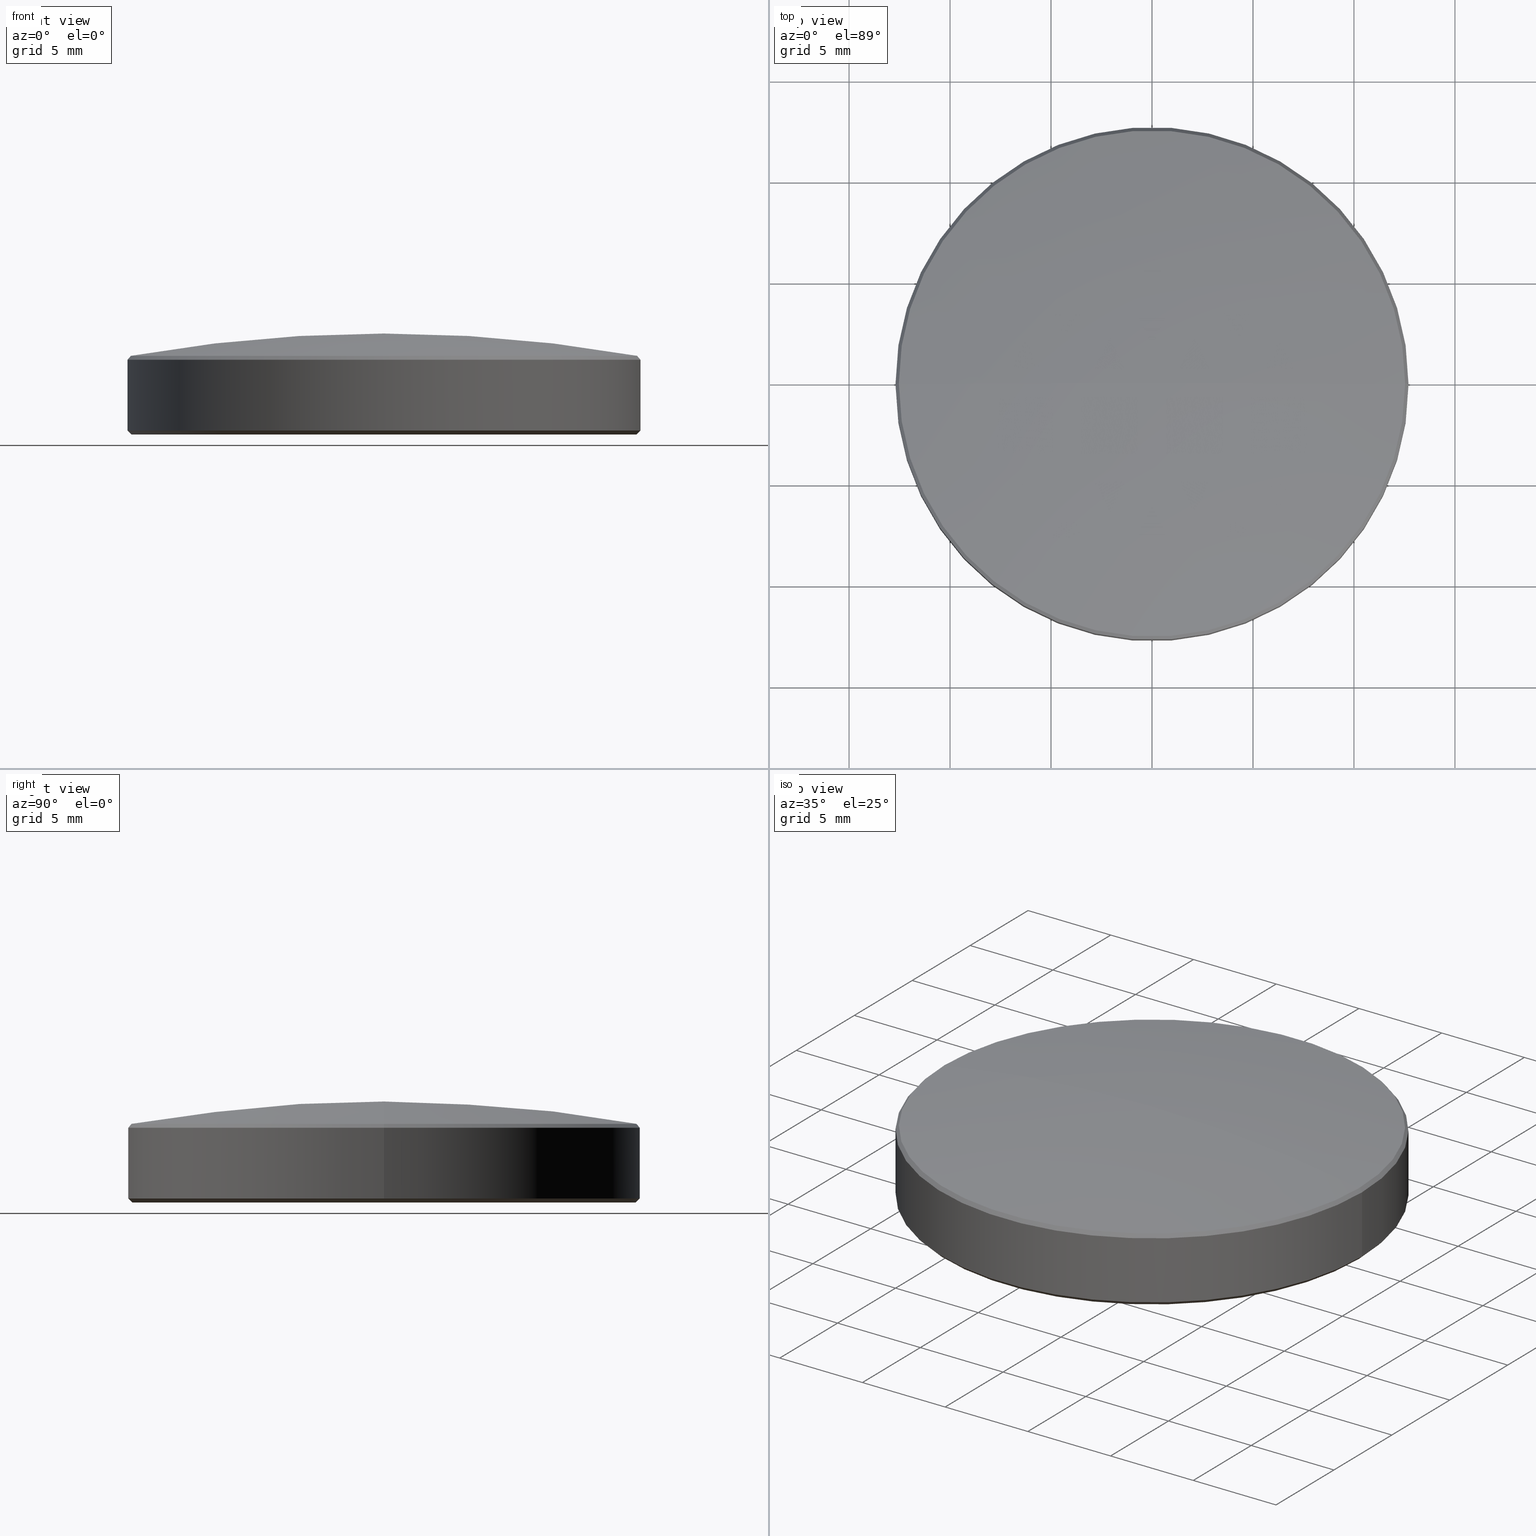
[diagram: canonical four-view strip — front | top / right | iso, engineering-drawing reading convention]
A machine part, canonical four-view strip (front | top / right | iso — engineering-drawing reading convention). The complete STEP part file that produces these views, byte-faithful:
ISO-10303-21;
HEADER;
FILE_DESCRIPTION (( 'STEP AP214' ),
    '1' );
FILE_NAME ('GL7AL1-025-050.STEP',
    '2024-07-21T09:20:45',
    ( '' ),
    ( '' ),
    'SwSTEP 2.0',
    'SolidWorks 2022',
    '' );
FILE_SCHEMA (( 'AUTOMOTIVE_DESIGN' ));
ENDSEC;

DATA;
#1 = ORIENTED_EDGE ( 'NONE', *, *, #106, .T. ) ;
#2 =( NAMED_UNIT ( * ) SI_UNIT ( $, .STERADIAN. ) SOLID_ANGLE_UNIT ( ) );
#3 = FILL_AREA_STYLE ('',( #185 ) ) ;
#4 = COLOUR_RGB ( '',1.000000000000000000, 1.000000000000000000, 1.000000000000000000 ) ;
#5 = CIRCLE ( 'NONE', #192, 12.53498460677301907 ) ;
#6 = ADVANCED_FACE ( 'NONE', ( #213 ), #10, .T. ) ;
#7 = AXIS2_PLACEMENT_3D ( 'NONE', #35, #199, #96 ) ;
#8 = DIRECTION ( 'NONE',  ( 1.000000000000000000, 0.000000000000000000, 0.000000000000000000 ) ) ;
#9 = CIRCLE ( 'NONE', #76, 12.50000000000000178 ) ;
#10 = CYLINDRICAL_SURFACE ( 'NONE', #163, 12.69999999999999929 ) ;
#11 = CARTESIAN_POINT ( 'NONE',  ( -12.69999999999999929, 1.555301434917138433E-15, 0.1999999999999987899 ) ) ;
#12 = ORIENTED_EDGE ( 'NONE', *, *, #33, .F. ) ;
#13 = EDGE_LOOP ( 'NONE', ( #101, #48, #232 ) ) ;
#14 = EDGE_CURVE ( 'NONE', #217, #95, #168, .T. ) ;
#15 = DIRECTION ( 'NONE',  ( -1.000000000000000000, 0.000000000000000000, 0.000000000000000000 ) ) ;
#16 = AXIS2_PLACEMENT_3D ( 'NONE', #32, #115, #18 ) ;
#17 = LINE ( 'NONE', #98, #226 ) ;
#18 = DIRECTION ( 'NONE',  ( -1.000000000000000000, 0.000000000000000000, 1.936615658360934486E-16 ) ) ;
#19 = SPHERICAL_SURFACE ( 'NONE', #250, 71.65999999999999659 ) ;
#20 = DIRECTION ( 'NONE',  ( -0.000000000000000000, -0.000000000000000000, 1.000000000000000000 ) ) ;
#21 = ORIENTED_EDGE ( 'NONE', *, *, #99, .T. ) ;
#22 =( NAMED_UNIT ( * ) SI_UNIT ( $, .STERADIAN. ) SOLID_ANGLE_UNIT ( ) );
#23 = SURFACE_STYLE_USAGE ( .BOTH. , #43 ) ;
#24 = AXIS2_PLACEMENT_3D ( 'NONE', #77, #20, #116 ) ;
#25 = CARTESIAN_POINT ( 'NONE',  ( 0.000000000000000000, 0.000000000000000000, 3.879999999999999893 ) ) ;
#26 = EDGE_LOOP ( 'NONE', ( #66, #128, #233, #111 ) ) ;
#27 = LINE ( 'NONE', #110, #42 ) ;
#28 = EDGE_LOOP ( 'NONE', ( #148, #178, #47, #214 ) ) ;
#29 = DIRECTION ( 'NONE',  ( -1.000000000000000000, -1.224646799147353454E-16, 0.000000000000000000 ) ) ;
#30 = VERTEX_POINT ( 'NONE', #258 ) ;
#31 = CARTESIAN_POINT ( 'NONE',  ( 0.000000000000000000, 0.000000000000000000, 3.879999999999999893 ) ) ;
#32 = CARTESIAN_POINT ( 'NONE',  ( 0.000000000000000000, 0.000000000000000000, -66.65999999999999659 ) ) ;
#33 = EDGE_CURVE ( 'NONE', #95, #52, #166, .T. ) ;
#34 = DIRECTION ( 'NONE',  ( 0.000000000000000000, 0.000000000000000000, -1.000000000000000000 ) ) ;
#35 = CARTESIAN_POINT ( 'NONE',  ( 0.000000000000000000, 0.000000000000000000, 0.1999999999999987899 ) ) ;
#36 = CARTESIAN_POINT ( 'NONE',  ( 0.000000000000000000, 0.000000000000000000, 0.000000000000000000 ) ) ;
#37 =( GEOMETRIC_REPRESENTATION_CONTEXT ( 3 ) GLOBAL_UNCERTAINTY_ASSIGNED_CONTEXT ( ( #39 ) ) GLOBAL_UNIT_ASSIGNED_CONTEXT ( ( #83, #64, #22 ) ) REPRESENTATION_CONTEXT ( 'NONE', 'WORKASPACE' ) );
#38 = CIRCLE ( 'NONE', #24, 12.69999999999999929 ) ;
#39 = UNCERTAINTY_MEASURE_WITH_UNIT (LENGTH_MEASURE( 1.000000000000000082E-05 ), #83, 'distance_accuracy_value', 'NONE');
#40 =( LENGTH_UNIT ( ) NAMED_UNIT ( * ) SI_UNIT ( .MILLI., .METRE. ) );
#41 = VECTOR ( 'NONE', #150, 1000.000000000000000 ) ;
#42 = VECTOR ( 'NONE', #237, 1000.000000000000000 ) ;
#43 = SURFACE_SIDE_STYLE ('',( #67 ) ) ;
#44 =( GEOMETRIC_REPRESENTATION_CONTEXT ( 3 ) GLOBAL_UNCERTAINTY_ASSIGNED_CONTEXT ( ( #170 ) ) GLOBAL_UNIT_ASSIGNED_CONTEXT ( ( #40, #103, #125 ) ) REPRESENTATION_CONTEXT ( 'NONE', 'WORKASPACE' ) );
#45 = AXIS2_PLACEMENT_3D ( 'NONE', #179, #159, #74 ) ;
#46 =( LENGTH_UNIT ( ) NAMED_UNIT ( * ) SI_UNIT ( .MILLI., .METRE. ) );
#47 = ORIENTED_EDGE ( 'NONE', *, *, #54, .T. ) ;
#48 = ORIENTED_EDGE ( 'NONE', *, *, #65, .T. ) ;
#49 = DIRECTION ( 'NONE',  ( 0.000000000000000000, 0.000000000000000000, 1.000000000000000000 ) ) ;
#50 = CARTESIAN_POINT ( 'NONE',  ( 0.000000000000000000, 0.000000000000000000, 3.895154035038178364 ) ) ;
#51 = CARTESIAN_POINT ( 'NONE',  ( 0.000000000000000000, 0.000000000000000000, 3.895154035038178364 ) ) ;
#52 = VERTEX_POINT ( 'NONE', #93 ) ;
#53 = AXIS2_PLACEMENT_3D ( 'NONE', #31, #63, #57 ) ;
#54 = EDGE_CURVE ( 'NONE', #191, #238, #132, .T. ) ;
#55 = CARTESIAN_POINT ( 'NONE',  ( -12.50000000000000178, 1.543054966925665273E-15, 0.000000000000000000 ) ) ;
#56 = ORIENTED_EDGE ( 'NONE', *, *, #249, .F. ) ;
#57 = DIRECTION ( 'NONE',  ( -1.000000000000000000, 0.000000000000000000, 0.000000000000000000 ) ) ;
#58 = CARTESIAN_POINT ( 'NONE',  ( 4.387909481344959759E-15, 0.000000000000000000, 5.000000000000004441 ) ) ;
#59 = AXIS2_PLACEMENT_3D ( 'NONE', #68, #244, #211 ) ;
#60 = DIRECTION ( 'NONE',  ( -1.000000000000000000, 0.000000000000000000, 1.936615658360934486E-16 ) ) ;
#61 = AXIS2_PLACEMENT_3D ( 'NONE', #114, #201, #240 ) ;
#62 = DIRECTION ( 'NONE',  ( 0.000000000000000000, 0.000000000000000000, -1.000000000000000000 ) ) ;
#63 = DIRECTION ( 'NONE',  ( -0.000000000000000000, -0.000000000000000000, -1.000000000000000000 ) ) ;
#64 =( NAMED_UNIT ( * ) PLANE_ANGLE_UNIT ( ) SI_UNIT ( $, .RADIAN. ) );
#65 = EDGE_CURVE ( 'NONE', #217, #52, #130, .T. ) ;
#66 = ORIENTED_EDGE ( 'NONE', *, *, #82, .F. ) ;
#67 = SURFACE_STYLE_FILL_AREA ( #3 ) ;
#68 = CARTESIAN_POINT ( 'NONE',  ( 0.000000000000000000, 0.000000000000000000, 0.000000000000000000 ) ) ;
#69 = ORIENTED_EDGE ( 'NONE', *, *, #157, .F. ) ;
#70 = APPLICATION_CONTEXT ( 'automotive_design' ) ;
#71 = EDGE_CURVE ( 'NONE', #52, #95, #5, .T. ) ;
#72 = VERTEX_POINT ( 'NONE', #55 ) ;
#73 = ORIENTED_EDGE ( 'NONE', *, *, #65, .F. ) ;
#74 = DIRECTION ( 'NONE',  ( 1.000000000000000000, 0.000000000000000000, 0.000000000000000000 ) ) ;
#75 = DIRECTION ( 'NONE',  ( -1.000000000000000000, 0.000000000000000000, 0.000000000000000000 ) ) ;
#76 = AXIS2_PLACEMENT_3D ( 'NONE', #212, #107, #8 ) ;
#77 = CARTESIAN_POINT ( 'NONE',  ( 0.000000000000000000, 0.000000000000000000, 0.1999999999999987899 ) ) ;
#78 = CIRCLE ( 'NONE', #105, 12.69999999999999929 ) ;
#79 = CARTESIAN_POINT ( 'NONE',  ( 0.000000000000000000, 0.000000000000000000, 3.895154035038178364 ) ) ;
#80 = FACE_OUTER_BOUND ( 'NONE', #13, .T. ) ;
#81 = ORIENTED_EDGE ( 'NONE', *, *, #152, .F. ) ;
#82 = EDGE_CURVE ( 'NONE', #72, #238, #134, .T. ) ;
#83 =( LENGTH_UNIT ( ) NAMED_UNIT ( * ) SI_UNIT ( .MILLI., .METRE. ) );
#84 = EDGE_CURVE ( 'NONE', #172, #72, #9, .T. ) ;
#85 = STYLED_ITEM ( 'NONE', ( #187 ), #261 ) ;
#86 = PRODUCT_RELATED_PRODUCT_CATEGORY ( 'part', '', ( #228 ) ) ;
#87 = CARTESIAN_POINT ( 'NONE',  ( -12.53498460677301729, 0.000000000000000000, 3.895154035038178364 ) ) ;
#88 = APPLICATION_PROTOCOL_DEFINITION ( 'draft international standard', 'automotive_design', 1998, #70 ) ;
#89 = DIRECTION ( 'NONE',  ( -0.000000000000000000, -0.000000000000000000, -1.000000000000000000 ) ) ;
#90 = CARTESIAN_POINT ( 'NONE',  ( -12.69999999999999929, 0.000000000000000000, 3.879999999999999893 ) ) ;
#91 = ORIENTED_EDGE ( 'NONE', *, *, #84, .T. ) ;
#92 = DIRECTION ( 'NONE',  ( -1.224646799147353207E-16, 1.000000000000000000, 1.499759782661856513E-32 ) ) ;
#93 = CARTESIAN_POINT ( 'NONE',  ( 12.53498460677301729, 1.535092877604591061E-15, 3.895154035038178364 ) ) ;
#94 = DIRECTION ( 'NONE',  ( 0.6422915872619319178, 7.865803364595977467E-17, -0.7664603818414543746 ) ) ;
#95 = VERTEX_POINT ( 'NONE', #87 ) ;
#96 = DIRECTION ( 'NONE',  ( 1.000000000000000000, 0.000000000000000000, 0.000000000000000000 ) ) ;
#97 = FACE_OUTER_BOUND ( 'NONE', #28, .T. ) ;
#98 = CARTESIAN_POINT ( 'NONE',  ( 12.69999999999999929, 0.000000000000000000, 0.1999999999999987899 ) ) ;
#99 = EDGE_CURVE ( 'NONE', #255, #30, #27, .T. ) ;
#100 = CARTESIAN_POINT ( 'NONE',  ( -12.69999999999999929, 0.000000000000000000, 0.1999999999999987899 ) ) ;
#101 = ORIENTED_EDGE ( 'NONE', *, *, #14, .F. ) ;
#102 = ADVANCED_BREP_SHAPE_REPRESENTATION ( 'GL7AL1-025-050', ( #261, #189 ), #44 ) ;
#103 =( NAMED_UNIT ( * ) PLANE_ANGLE_UNIT ( ) SI_UNIT ( $, .RADIAN. ) );
#104 = FILL_AREA_STYLE ('',( #225 ) ) ;
#105 = AXIS2_PLACEMENT_3D ( 'NONE', #198, #264, #218 ) ;
#106 = EDGE_CURVE ( 'NONE', #191, #255, #224, .T. ) ;
#107 = DIRECTION ( 'NONE',  ( -0.000000000000000000, -0.000000000000000000, -1.000000000000000000 ) ) ;
#108 = AXIS2_PLACEMENT_3D ( 'NONE', #203, #62, #263 ) ;
#109 = PRODUCT_DEFINITION ( 'δ֪', '', #223, #131 ) ;
#110 = CARTESIAN_POINT ( 'NONE',  ( 12.69999999999999929, 1.555301434917138433E-15, 3.879999999999999893 ) ) ;
#111 = ORIENTED_EDGE ( 'NONE', *, *, #230, .F. ) ;
#112 = EDGE_LOOP ( 'NONE', ( #73, #167, #229 ) ) ;
#113 = ORIENTED_EDGE ( 'NONE', *, *, #126, .F. ) ;
#114 = CARTESIAN_POINT ( 'NONE',  ( 0.000000000000000000, 0.000000000000000000, 0.1999999999999987899 ) ) ;
#115 = DIRECTION ( 'NONE',  ( 0.000000000000000000, 1.000000000000000000, -0.000000000000000000 ) ) ;
#116 = DIRECTION ( 'NONE',  ( 1.000000000000000000, 0.000000000000000000, 0.000000000000000000 ) ) ;
#117 = FACE_OUTER_BOUND ( 'NONE', #141, .T. ) ;
#118 = CONICAL_SURFACE ( 'NONE', #7, 12.69999999999999929, 0.7853981633974439491 ) ;
#119 = DIRECTION ( 'NONE',  ( 0.000000000000000000, 0.000000000000000000, -1.000000000000000000 ) ) ;
#120 = EDGE_LOOP ( 'NONE', ( #113, #12, #175, #81 ) ) ;
#121 = CARTESIAN_POINT ( 'NONE',  ( 12.69999999999999929, 1.555301434917138433E-15, 3.698237612947643971 ) ) ;
#122 = AXIS2_PLACEMENT_3D ( 'NONE', #51, #146, #193 ) ;
#123 = VECTOR ( 'NONE', #177, 1000.000000000000000 ) ;
#124 = COLOUR_RGB ( '',1.000000000000000000, 1.000000000000000000, 1.000000000000000000 ) ;
#125 =( NAMED_UNIT ( * ) SI_UNIT ( $, .STERADIAN. ) SOLID_ANGLE_UNIT ( ) );
#126 = EDGE_CURVE ( 'NONE', #52, #255, #155, .T. ) ;
#127 = MECHANICAL_DESIGN_GEOMETRIC_PRESENTATION_REPRESENTATION (  '', ( #85 ), #151 ) ;
#128 = ORIENTED_EDGE ( 'NONE', *, *, #84, .F. ) ;
#129 = ORIENTED_EDGE ( 'NONE', *, *, #82, .T. ) ;
#130 = CIRCLE ( 'NONE', #202, 71.65999999999999659 ) ;
#131 = PRODUCT_DEFINITION_CONTEXT ( 'detailed design', #70, 'design' ) ;
#132 = LINE ( 'NONE', #90, #41 ) ;
#133 = ORIENTED_EDGE ( 'NONE', *, *, #195, .F. ) ;
#134 = LINE ( 'NONE', #11, #123 ) ;
#135 = FACE_OUTER_BOUND ( 'NONE', #120, .T. ) ;
#136 = ADVANCED_FACE ( 'NONE', ( #80 ), #19, .T. ) ;
#137 = CARTESIAN_POINT ( 'NONE',  ( -12.53498460677301729, 0.000000000000000000, 3.895154035038178364 ) ) ;
#138 = CARTESIAN_POINT ( 'NONE',  ( 12.53498460677301729, 1.535092877604592047E-15, 3.895154035038178364 ) ) ;
#139 = CLOSED_SHELL ( 'NONE', ( #222, #144, #136, #6, #208, #254, #242, #210, #184 ) ) ;
#140 = CARTESIAN_POINT ( 'NONE',  ( 12.50000000000000178, 0.000000000000000000, 0.000000000000000000 ) ) ;
#141 = EDGE_LOOP ( 'NONE', ( #256, #257, #173, #133 ) ) ;
#142 = AXIS2_PLACEMENT_3D ( 'NONE', #206, #34, #75 ) ;
#143 = PRESENTATION_STYLE_ASSIGNMENT (( #165 ) ) ;
#144 = ADVANCED_FACE ( 'NONE', ( #181 ), #162, .T. ) ;
#145 = DIRECTION ( 'NONE',  ( -1.000000000000000000, 0.000000000000000000, 0.000000000000000000 ) ) ;
#146 = DIRECTION ( 'NONE',  ( -0.000000000000000000, -0.000000000000000000, 1.000000000000000000 ) ) ;
#147 = PRODUCT_CONTEXT ( 'NONE', #200, 'mechanical' ) ;
#148 = ORIENTED_EDGE ( 'NONE', *, *, #99, .F. ) ;
#149 = DIRECTION ( 'NONE',  ( 1.000000000000000000, 0.000000000000000000, 0.000000000000000000 ) ) ;
#150 = DIRECTION ( 'NONE',  ( -0.000000000000000000, -0.000000000000000000, -1.000000000000000000 ) ) ;
#151 =( GEOMETRIC_REPRESENTATION_CONTEXT ( 3 ) GLOBAL_UNCERTAINTY_ASSIGNED_CONTEXT ( ( #160 ) ) GLOBAL_UNIT_ASSIGNED_CONTEXT ( ( #46, #188, #2 ) ) REPRESENTATION_CONTEXT ( 'NONE', 'WORKASPACE' ) );
#152 = EDGE_CURVE ( 'NONE', #255, #191, #186, .T. ) ;
#153 = DIRECTION ( 'NONE',  ( -0.6422915872619319178, 0.000000000000000000, -0.7664603818414543746 ) ) ;
#154 = FACE_OUTER_BOUND ( 'NONE', #112, .T. ) ;
#155 = LINE ( 'NONE', #138, #209 ) ;
#156 = STYLED_ITEM ( 'NONE', ( #143 ), #102 ) ;
#157 = EDGE_CURVE ( 'NONE', #30, #238, #78, .T. ) ;
#158 = CYLINDRICAL_SURFACE ( 'NONE', #53, 12.69999999999999929 ) ;
#159 = DIRECTION ( 'NONE',  ( 0.000000000000000000, 0.000000000000000000, -1.000000000000000000 ) ) ;
#160 = UNCERTAINTY_MEASURE_WITH_UNIT (LENGTH_MEASURE( 1.000000000000000082E-05 ), #46, 'distance_accuracy_value', 'NONE');
#161 = AXIS2_PLACEMENT_3D ( 'NONE', #169, #196, #253 ) ;
#162 = CONICAL_SURFACE ( 'NONE', #61, 12.69999999999999929, 0.7853981633974439491 ) ;
#163 = AXIS2_PLACEMENT_3D ( 'NONE', #25, #89, #234 ) ;
#164 = SURFACE_SIDE_STYLE ('',( #248 ) ) ;
#165 = SURFACE_STYLE_USAGE ( .BOTH. , #164 ) ;
#166 = CIRCLE ( 'NONE', #122, 12.53498460677301907 ) ;
#167 = ORIENTED_EDGE ( 'NONE', *, *, #14, .T. ) ;
#168 = CIRCLE ( 'NONE', #161, 71.65999999999999659 ) ;
#169 = CARTESIAN_POINT ( 'NONE',  ( 0.000000000000000000, 0.000000000000000000, -66.65999999999999659 ) ) ;
#170 = UNCERTAINTY_MEASURE_WITH_UNIT (LENGTH_MEASURE( 1.000000000000000082E-05 ), #40, 'distance_accuracy_value', 'NONE');
#171 = CARTESIAN_POINT ( 'NONE',  ( 0.000000000000000000, 0.000000000000000000, 0.000000000000000000 ) ) ;
#172 = VERTEX_POINT ( 'NONE', #140 ) ;
#173 = ORIENTED_EDGE ( 'NONE', *, *, #106, .F. ) ;
#174 = DIRECTION ( 'NONE',  ( -0.000000000000000000, -0.000000000000000000, 1.000000000000000000 ) ) ;
#175 = ORIENTED_EDGE ( 'NONE', *, *, #195, .T. ) ;
#176 = EDGE_CURVE ( 'NONE', #72, #172, #227, .T. ) ;
#177 = DIRECTION ( 'NONE',  ( -0.7071067811865444641, 8.659560562354895880E-17, 0.7071067811865505703 ) ) ;
#178 = ORIENTED_EDGE ( 'NONE', *, *, #152, .T. ) ;
#179 = CARTESIAN_POINT ( 'NONE',  ( 0.000000000000000000, 0.000000000000000000, 3.698237612947643971 ) ) ;
#180 = CARTESIAN_POINT ( 'NONE',  ( -12.69999999999999929, 0.000000000000000000, 3.698237612947643971 ) ) ;
#181 = FACE_OUTER_BOUND ( 'NONE', #251, .T. ) ;
#182 = DIRECTION ( 'NONE',  ( 0.7071067811865444641, 0.000000000000000000, 0.7071067811865505703 ) ) ;
#183 = CARTESIAN_POINT ( 'NONE',  ( 0.000000000000000000, 0.000000000000000000, -66.65999999999999659 ) ) ;
#184 = ADVANCED_FACE ( 'NONE', ( #135 ), #204, .T. ) ;
#185 = FILL_AREA_STYLE_COLOUR ( '', #124 ) ;
#186 = CIRCLE ( 'NONE', #45, 12.69999999999999929 ) ;
#187 = PRESENTATION_STYLE_ASSIGNMENT (( #23 ) ) ;
#188 =( NAMED_UNIT ( * ) PLANE_ANGLE_UNIT ( ) SI_UNIT ( $, .RADIAN. ) );
#189 = AXIS2_PLACEMENT_3D ( 'NONE', #171, #49, #149 ) ;
#190 = ORIENTED_EDGE ( 'NONE', *, *, #176, .F. ) ;
#191 = VERTEX_POINT ( 'NONE', #180 ) ;
#192 = AXIS2_PLACEMENT_3D ( 'NONE', #50, #174, #145 ) ;
#193 = DIRECTION ( 'NONE',  ( -1.000000000000000000, 0.000000000000000000, 0.000000000000000000 ) ) ;
#194 = ORIENTED_EDGE ( 'NONE', *, *, #176, .T. ) ;
#195 = EDGE_CURVE ( 'NONE', #95, #191, #239, .T. ) ;
#196 = DIRECTION ( 'NONE',  ( 0.000000000000000000, -1.000000000000000000, 0.000000000000000000 ) ) ;
#197 = ORIENTED_EDGE ( 'NONE', *, *, #157, .T. ) ;
#198 = CARTESIAN_POINT ( 'NONE',  ( 0.000000000000000000, 0.000000000000000000, 0.1999999999999987899 ) ) ;
#199 = DIRECTION ( 'NONE',  ( -0.000000000000000000, -0.000000000000000000, 1.000000000000000000 ) ) ;
#200 = APPLICATION_CONTEXT ( 'automotive_design' ) ;
#201 = DIRECTION ( 'NONE',  ( -0.000000000000000000, -0.000000000000000000, 1.000000000000000000 ) ) ;
#202 = AXIS2_PLACEMENT_3D ( 'NONE', #236, #92, #29 ) ;
#203 = CARTESIAN_POINT ( 'NONE',  ( 0.000000000000000000, 0.000000000000000000, 3.698237612947643971 ) ) ;
#204 = CONICAL_SURFACE ( 'NONE', #247, 12.53498460677301729, 0.6974843652732920507 ) ;
#205 = PRODUCT_DEFINITION_SHAPE ( 'NONE', 'NONE',  #109 ) ;
#206 = CARTESIAN_POINT ( 'NONE',  ( 0.000000000000000000, 0.000000000000000000, 3.895154035038178364 ) ) ;
#207 = ORIENTED_EDGE ( 'NONE', *, *, #54, .F. ) ;
#208 = ADVANCED_FACE ( 'NONE', ( #97 ), #158, .T. ) ;
#209 = VECTOR ( 'NONE', #94, 1000.000000000000227 ) ;
#210 = ADVANCED_FACE ( 'NONE', ( #241 ), #118, .T. ) ;
#211 = DIRECTION ( 'NONE',  ( 1.000000000000000000, 0.000000000000000000, -0.000000000000000000 ) ) ;
#212 = CARTESIAN_POINT ( 'NONE',  ( 0.000000000000000000, 0.000000000000000000, 0.000000000000000000 ) ) ;
#213 = FACE_OUTER_BOUND ( 'NONE', #235, .T. ) ;
#214 = ORIENTED_EDGE ( 'NONE', *, *, #230, .T. ) ;
#215 = PRESENTATION_LAYER_ASSIGNMENT (  '', '', ( #156 ) ) ;
#216 = VECTOR ( 'NONE', #153, 1000.000000000000227 ) ;
#217 = VERTEX_POINT ( 'NONE', #58 ) ;
#218 = DIRECTION ( 'NONE',  ( 1.000000000000000000, 0.000000000000000000, 0.000000000000000000 ) ) ;
#219 = SPHERICAL_SURFACE ( 'NONE', #16, 71.65999999999999659 ) ;
#220 = DIRECTION ( 'NONE',  ( -0.000000000000000000, -0.000000000000000000, -1.000000000000000000 ) ) ;
#221 = DIRECTION ( 'NONE',  ( 0.000000000000000000, 1.000000000000000000, -0.000000000000000000 ) ) ;
#222 = ADVANCED_FACE ( 'NONE', ( #117 ), #259, .T. ) ;
#223 = PRODUCT_DEFINITION_FORMATION_WITH_SPECIFIED_SOURCE ( '�κ�', '', #228, .NOT_KNOWN. ) ;
#224 = CIRCLE ( 'NONE', #108, 12.69999999999999929 ) ;
#225 = FILL_AREA_STYLE_COLOUR ( '', #4 ) ;
#226 = VECTOR ( 'NONE', #182, 1000.000000000000000 ) ;
#227 = CIRCLE ( 'NONE', #265, 12.50000000000000178 ) ;
#228 = PRODUCT ( 'GL7AL1-025-050', 'GL7AL1-025-050', '', ( #147 ) ) ;
#229 = ORIENTED_EDGE ( 'NONE', *, *, #33, .T. ) ;
#230 = EDGE_CURVE ( 'NONE', #238, #30, #38, .T. ) ;
#231 = PRESENTATION_LAYER_ASSIGNMENT (  '', '', ( #85 ) ) ;
#232 = ORIENTED_EDGE ( 'NONE', *, *, #71, .T. ) ;
#233 = ORIENTED_EDGE ( 'NONE', *, *, #249, .T. ) ;
#234 = DIRECTION ( 'NONE',  ( -1.000000000000000000, 0.000000000000000000, 0.000000000000000000 ) ) ;
#235 = EDGE_LOOP ( 'NONE', ( #1, #21, #197, #207 ) ) ;
#236 = CARTESIAN_POINT ( 'NONE',  ( 0.000000000000000000, 0.000000000000000000, -66.65999999999999659 ) ) ;
#237 = DIRECTION ( 'NONE',  ( -0.000000000000000000, -0.000000000000000000, -1.000000000000000000 ) ) ;
#238 = VERTEX_POINT ( 'NONE', #100 ) ;
#239 = LINE ( 'NONE', #137, #216 ) ;
#240 = DIRECTION ( 'NONE',  ( 1.000000000000000000, 0.000000000000000000, 0.000000000000000000 ) ) ;
#241 = FACE_OUTER_BOUND ( 'NONE', #26, .T. ) ;
#242 = ADVANCED_FACE ( 'NONE', ( #154 ), #219, .T. ) ;
#243 = MECHANICAL_DESIGN_GEOMETRIC_PRESENTATION_REPRESENTATION (  '', ( #156 ), #37 ) ;
#244 = DIRECTION ( 'NONE',  ( 0.000000000000000000, 0.000000000000000000, 1.000000000000000000 ) ) ;
#245 = APPLICATION_PROTOCOL_DEFINITION ( 'draft international standard', 'automotive_design', 1998, #200 ) ;
#246 = PLANE ( 'NONE',  #59 ) ;
#247 = AXIS2_PLACEMENT_3D ( 'NONE', #79, #119, #15 ) ;
#248 = SURFACE_STYLE_FILL_AREA ( #104 ) ;
#249 = EDGE_CURVE ( 'NONE', #172, #30, #17, .T. ) ;
#250 = AXIS2_PLACEMENT_3D ( 'NONE', #183, #221, #60 ) ;
#251 = EDGE_LOOP ( 'NONE', ( #190, #129, #69, #56 ) ) ;
#252 = SHAPE_DEFINITION_REPRESENTATION ( #205, #102 ) ;
#253 = DIRECTION ( 'NONE',  ( 0.000000000000000000, 0.000000000000000000, -1.000000000000000000 ) ) ;
#254 = ADVANCED_FACE ( 'NONE', ( #266 ), #246, .F. ) ;
#255 = VERTEX_POINT ( 'NONE', #121 ) ;
#256 = ORIENTED_EDGE ( 'NONE', *, *, #71, .F. ) ;
#257 = ORIENTED_EDGE ( 'NONE', *, *, #126, .T. ) ;
#258 = CARTESIAN_POINT ( 'NONE',  ( 12.69999999999999929, 1.555301434917138433E-15, 0.1999999999999987899 ) ) ;
#259 = CONICAL_SURFACE ( 'NONE', #142, 12.53498460677301729, 0.6974843652732920507 ) ;
#260 = EDGE_LOOP ( 'NONE', ( #91, #194 ) ) ;
#261 = MANIFOLD_SOLID_BREP ( '����2', #139 ) ;
#262 = DIRECTION ( 'NONE',  ( 1.000000000000000000, 0.000000000000000000, 0.000000000000000000 ) ) ;
#263 = DIRECTION ( 'NONE',  ( 1.000000000000000000, 0.000000000000000000, 0.000000000000000000 ) ) ;
#264 = DIRECTION ( 'NONE',  ( -0.000000000000000000, -0.000000000000000000, 1.000000000000000000 ) ) ;
#265 = AXIS2_PLACEMENT_3D ( 'NONE', #36, #220, #262 ) ;
#266 = FACE_OUTER_BOUND ( 'NONE', #260, .T. ) ;
ENDSEC;
END-ISO-10303-21;
